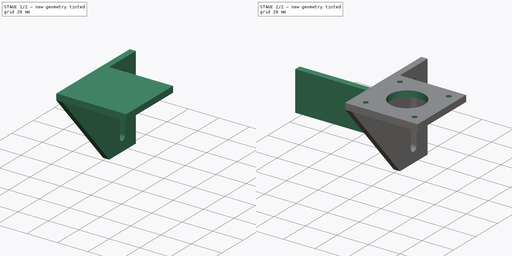
[diagram: build sequence overview — one tinted view per stage of 2, left to right]
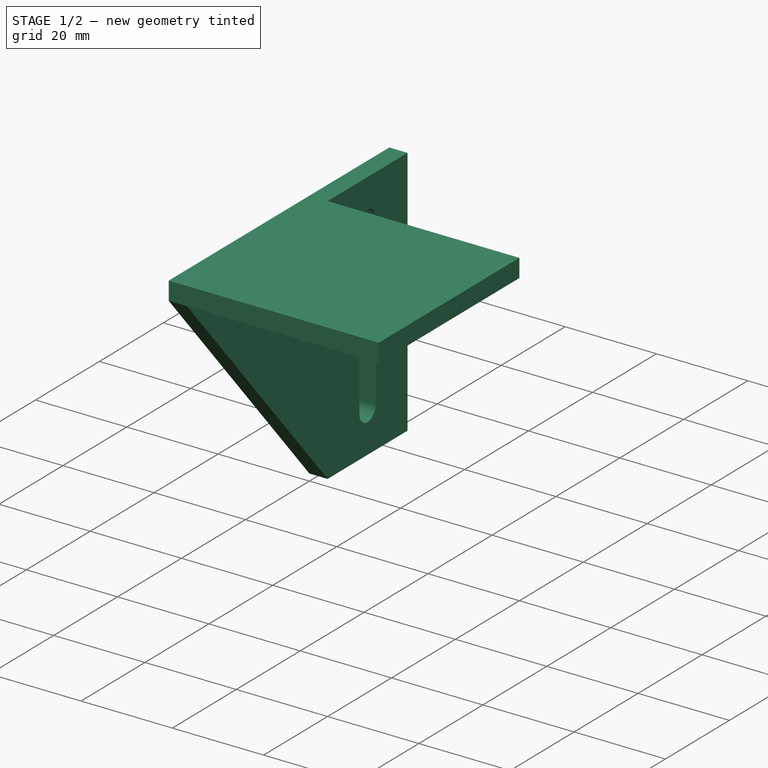
[diagram: stage 1 of 2 — iso view after this stage's code; geometry added in this stage tinted green]
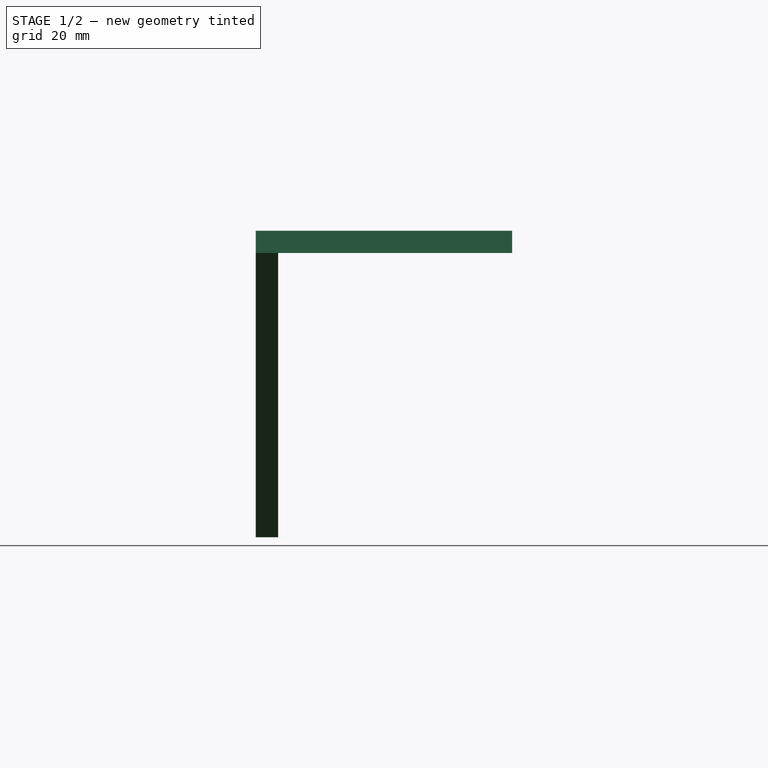
[diagram: stage 1 of 2 — front view after this stage's code; geometry added in this stage tinted green]
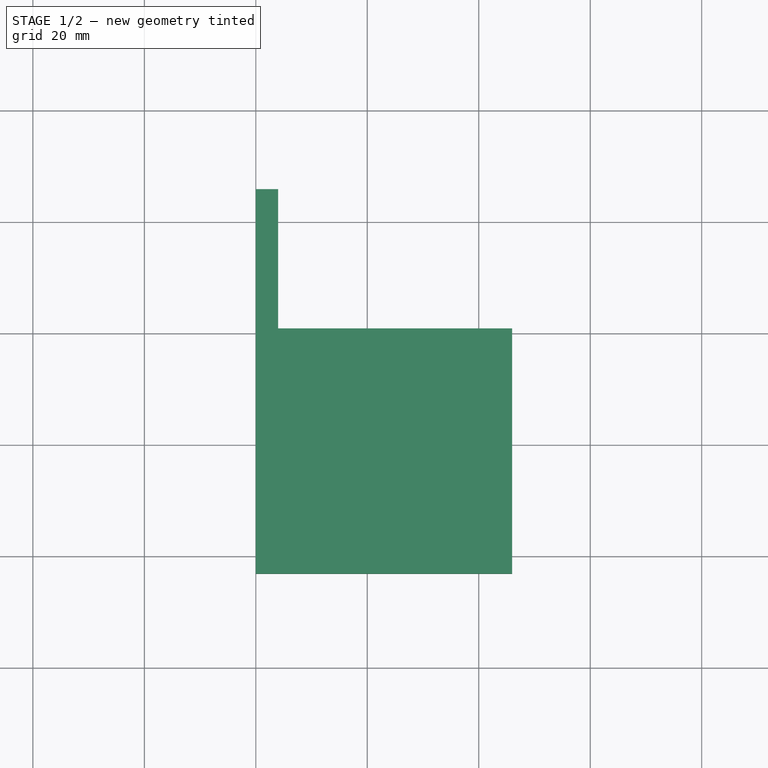
[diagram: stage 1 of 2 — top view after this stage's code; geometry added in this stage tinted green]
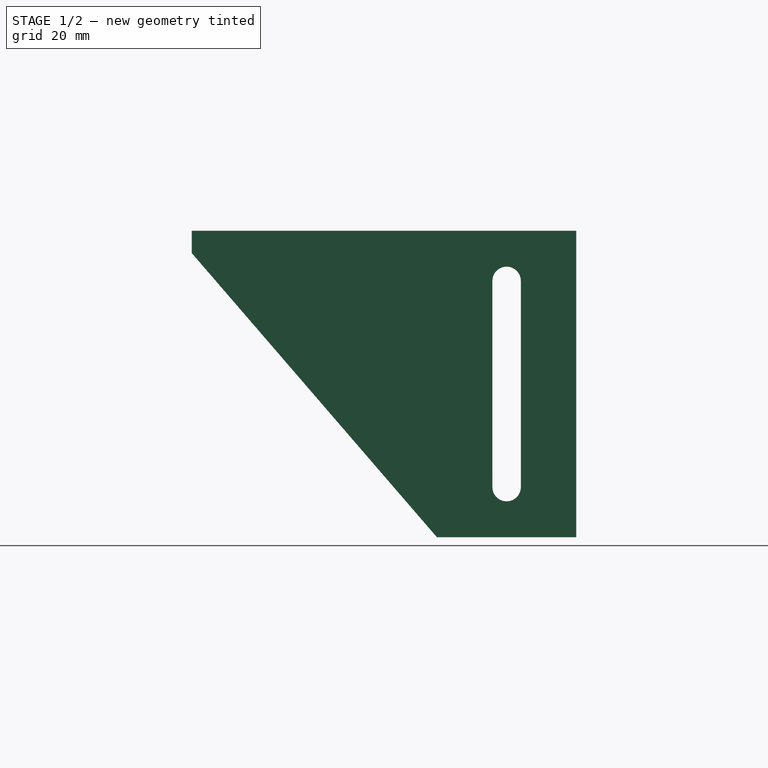
[diagram: stage 1 of 2 — right view after this stage's code; geometry added in this stage tinted green]
FCSTD DOCUMENT  (FreeCAD 0.19R23578 (Git))
Label: y_motor_bracket
License: All rights reserved
LicenseURL: http://en.wikipedia.org/wiki/All_rights_reserved
objects: Sketcher::SketchObject×4, PartDesign::Pad×3, PartDesign::CoordinateSystem×2, PartDesign::Pocket×1, PartDesign::Body×1, App::Part×1
note: 15 computed .brp shape members not serialized (recipe doc carries the construction recipe); baked Part::Feature solids carry a one-line shape summary decoded from their .brp

FEATURE [Sketcher::SketchObject] Sketch029
  MapMode = 5
  Placement = pos=(0,0,0) rot=(0.57735,0.57735,0.57735;2.0944rad)
  Support = -> [YZ_Plane035]
  sketch-geometry (10):
    g0: LineSegment StartX=0 StartY=4 StartZ=0 EndX=25 EndY=4 EndZ=0
    g1: LineSegment StartX=25 StartY=4 StartZ=0 EndX=25 EndY=-51 EndZ=0
    g2: LineSegment StartX=25 StartY=-51 StartZ=0 EndX=0 EndY=-51 EndZ=0
    g3: ArcOfCircle CenterX=12.5 CenterY=-5 CenterZ=0 NormalX=0 NormalY=0 NormalZ=1 AngleXU=0 Radius=2.55 StartAngle=2.224e-13 EndAngle=3.14159
    g4: ArcOfCircle CenterX=12.5 CenterY=-42 CenterZ=0 NormalX=0 NormalY=0 NormalZ=1 AngleXU=0 Radius=2.55 StartAngle=3.14159 EndAngle=6.28319
    g5: LineSegment StartX=9.95 StartY=-5 StartZ=0 EndX=9.95 EndY=-42 EndZ=0
    g6: LineSegment StartX=15.05 StartY=-5 StartZ=0 EndX=15.05 EndY=-42 EndZ=0
    g7: LineSegment StartX=0 StartY=-51 StartZ=0 EndX=-44 EndY=0 EndZ=0
    g8: LineSegment StartX=-44 StartY=0 StartZ=0 EndX=0 EndY=0 EndZ=0
    g9: LineSegment StartX=0 StartY=4 StartZ=0 EndX=0 EndY=0 EndZ=0
  constraints (27):
    c: Horizontal(g0)
    c: Horizontal(g2)
    c: Vertical(g1)
    c: Tangent(g3,g6) = 1.5708
    c: Tangent(g3,g5) = -1.5708
    c: Tangent(g5,g4) = -1.5708
    c: Tangent(g6,g4) = 1.5708
    c: Vertical(g5)
    c: Equal(g3,g4)
    c: DistanceX(g0,g4) = 12.5
    c: Diameter(g3) = 5.1
    c: DistanceY(g4,g0) = 46
    c: Coincident(g0,g1)
    c: DistanceX(g2,g2) = 25
    c: Coincident(g2,g1)
    c: PointOnObject(g0,g-2)
    c: DistanceY(g-1,g0) = 4
    c: DistanceY(g3,g-1) = 5
    c: DistanceY(g2,g-1) = 51
    c: Coincident(g7,g2)
    c: PointOnObject(g7,g-1)
    c: Coincident(g8,g7)
    c: Coincident(g8,g-1)
    c: Coincident(g9,g0)
    c: Coincident(g9,g8)
    c: DistanceX(g7,g8) = 44
    c: PointOnObject(g2,g-2)
FEATURE [PartDesign::Pad] Pad012
  AllowMultiFace = false
  Direction = (1,1,1)
  Length = 4
  Length2 = 100
  Placement = pos=(0,0,0) rot=(0.57735,0.57735,0.57735;2.0944rad)
  Profile = -> Sketch029
  Type = 0
FEATURE [Sketcher::SketchObject] Sketch030
  MapMode = 5
  Placement = pos=(0,0,0) rot=(0.57735,0.57735,0.57735;2.0944rad)
  Support = -> [YZ_Plane035]
  sketch-geometry (4):
    g0: LineSegment StartX=0 StartY=0 StartZ=0 EndX=-44 EndY=0 EndZ=0
    g1: LineSegment StartX=-44 StartY=0 StartZ=0 EndX=-44 EndY=4 EndZ=0
    g2: LineSegment StartX=-44 StartY=4 StartZ=0 EndX=0 EndY=4 EndZ=0
    g3: LineSegment StartX=0 StartY=4 StartZ=0 EndX=0 EndY=0 EndZ=0
  constraints (11):
    c: Coincident(g0,g1)
    c: Coincident(g1,g2)
    c: Coincident(g2,g3)
    c: Coincident(g3,g0)
    c: Horizontal(g0)
    c: Horizontal(g2)
    c: Vertical(g1)
    c: Vertical(g3)
    c: Coincident(g0,g-1)
    c: DistanceY(g1,g1) = 4
    c: DistanceX(g0,g0) = 44
FEATURE [PartDesign::Pad] Pad013
  AllowMultiFace = false
  BaseFeature = -> Pad012
  Direction = (1,1,1)
  Length = 46
  Length2 = 100
  Placement = pos=(0,0,0) rot=(0.57735,0.57735,0.57735;2.0944rad)
  Profile = -> Sketch030
  Type = 0
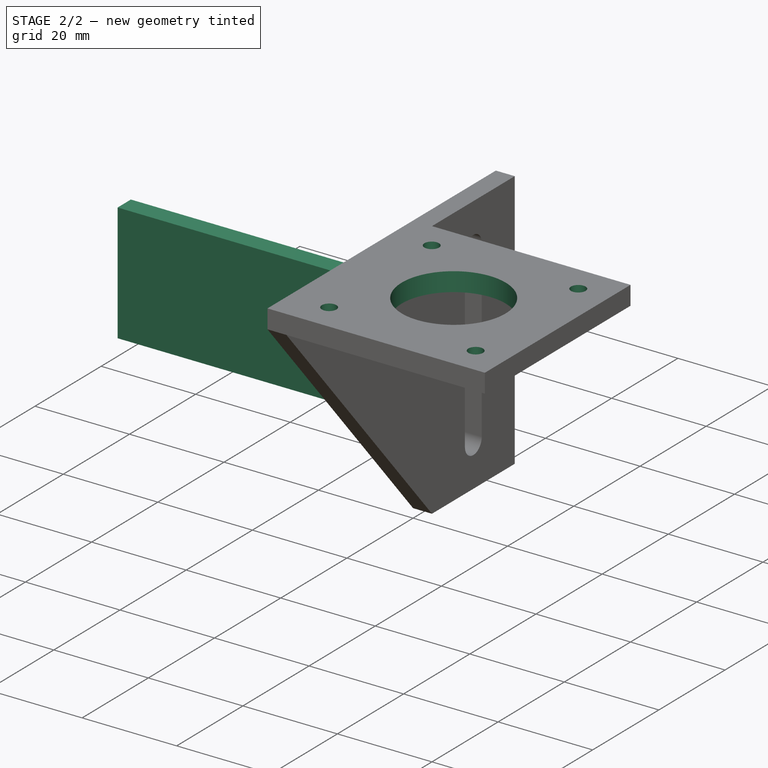
[diagram: stage 2 of 2 — iso view after this stage's code; geometry added in this stage tinted green]
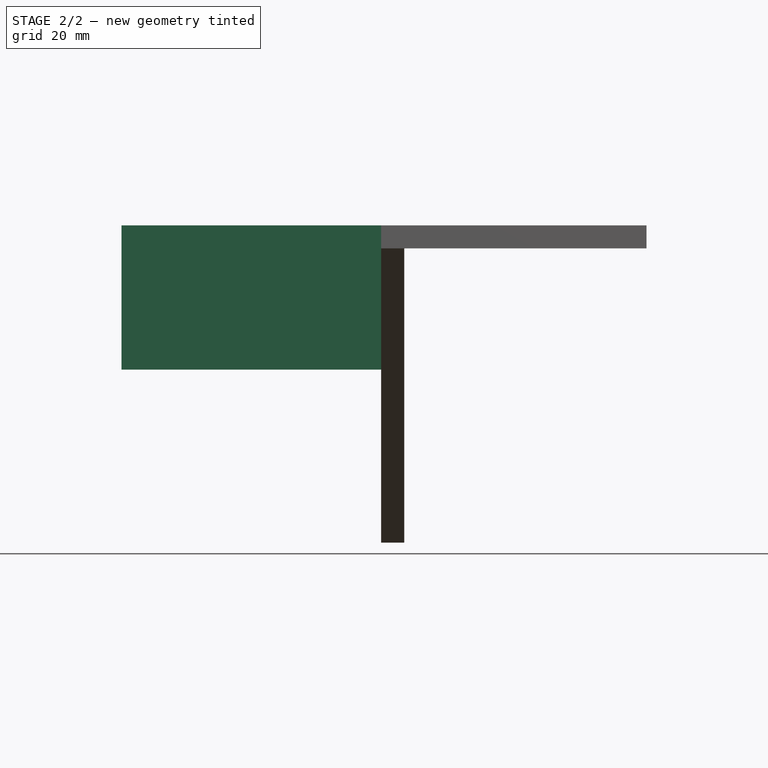
[diagram: stage 2 of 2 — front view after this stage's code; geometry added in this stage tinted green]
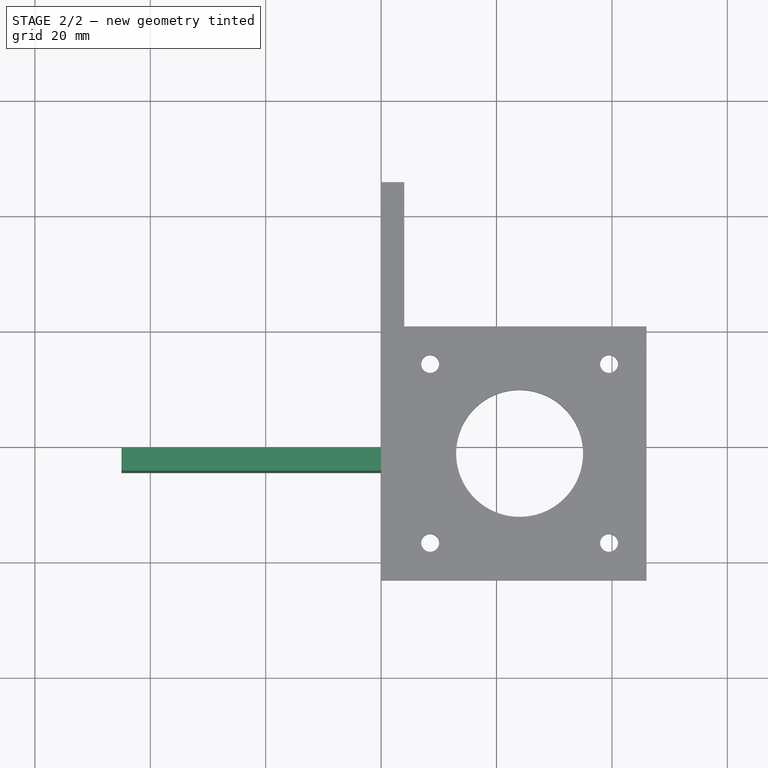
[diagram: stage 2 of 2 — top view after this stage's code; geometry added in this stage tinted green]
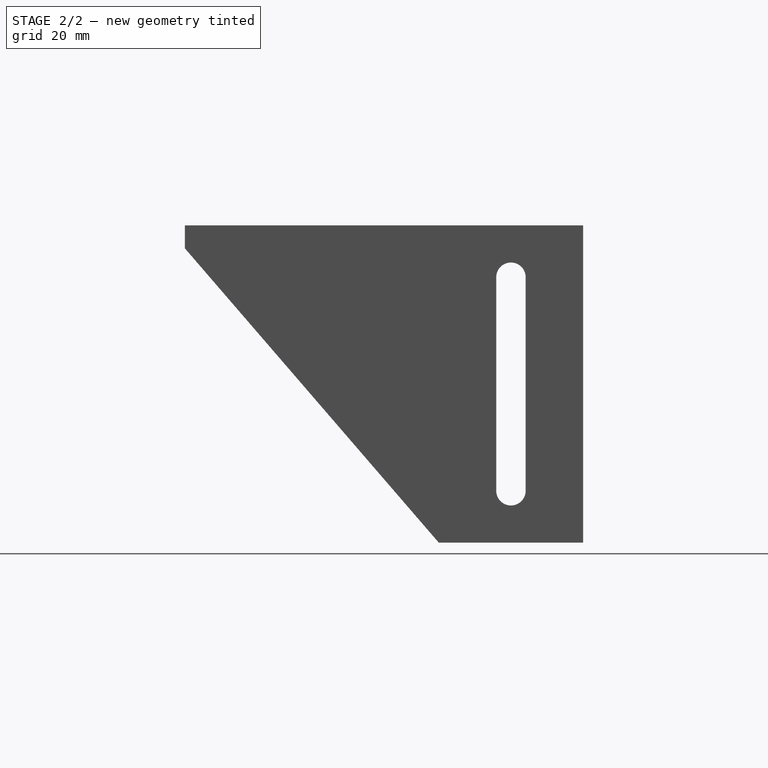
[diagram: stage 2 of 2 — right view after this stage's code; geometry added in this stage tinted green]
FEATURE [Sketcher::SketchObject] Sketch031
  MapMode = 5
  Support = -> [XY_Plane035]
  sketch-geometry (11):
    g0: Circle CenterX=8.5 CenterY=-6.5 CenterZ=0 NormalX=0 NormalY=0 NormalZ=1 AngleXU=0 Radius=1.55
    g1: Circle CenterX=39.5 CenterY=-6.5 CenterZ=0 NormalX=0 NormalY=0 NormalZ=1 AngleXU=0 Radius=1.55
    g2: Circle CenterX=39.5 CenterY=-37.5 CenterZ=0 NormalX=0 NormalY=0 NormalZ=1 AngleXU=0 Radius=1.55
    g3: Circle CenterX=8.5 CenterY=-37.5 CenterZ=0 NormalX=0 NormalY=0 NormalZ=1 AngleXU=0 Radius=1.55
    g4: Circle CenterX=24 CenterY=-22 CenterZ=0 NormalX=0 NormalY=0 NormalZ=1 AngleXU=0 Radius=11
    g5: LineSegment StartX=8.5 StartY=-6.5 StartZ=0 EndX=39.5 EndY=-6.5 EndZ=0
    g6: LineSegment StartX=39.5 StartY=-6.5 StartZ=0 EndX=39.5 EndY=-37.5 EndZ=0
    g7: LineSegment StartX=39.5 StartY=-37.5 StartZ=0 EndX=8.5 EndY=-37.5 EndZ=0
    g8: LineSegment StartX=8.5 StartY=-37.5 StartZ=0 EndX=8.5 EndY=-6.5 EndZ=0
    g9: LineSegment StartX=8.5 StartY=-6.5 StartZ=0 EndX=39.5 EndY=-37.5 EndZ=0
    g10: LineSegment StartX=39.5 StartY=-6.5 StartZ=0 EndX=8.5 EndY=-37.5 EndZ=0
  constraints (27):
    c: Coincident(g5,g6)
    c: Coincident(g6,g7)
    c: Coincident(g7,g8)
    c: Coincident(g8,g5)
    c: Horizontal(g5)
    c: Horizontal(g7)
    c: Vertical(g6)
    c: Vertical(g8)
    c: Coincident(g5,g0)
    c: Coincident(g6,g2)
    c: Coincident(g3,g7)
    c: Coincident(g1,g5)
    c: DistanceY(g6,g6) = 31
    c: DistanceX(g5,g5) = 31
    c: DistanceX(g-1,g0) = 8.5
    c: DistanceY(g0,g-1) = 6.5
    c: Coincident(g9,g0)
    c: Coincident(g9,g2)
    c: Coincident(g10,g1)
    c: Coincident(g10,g3)
    c: PointOnObject(g4,g10)
    c: PointOnObject(g4,g9)
    c: Equal(g0,g1)
    c: Equal(g1,g2)
    c: Equal(g2,g3)
    c: Diameter(g1) = 3.1
    c: Diameter(g4) = 22
FEATURE [PartDesign::Pocket] Pocket012
  AllowMultiFace = false
  BaseFeature = -> Pad013
  Length = 5
  Length2 = 100
  Placement = pos=(0,0,0) rot=(0.57735,0.57735,0.57735;2.0944rad)
  Profile = -> Sketch031
  Reversed = true
  Type = 1
FEATURE [Sketcher::SketchObject] Sketch032
  MapMode = 5
  Placement = pos=(0,0,0) rot=(-0.57735,0.57735,0.57735;4.18879rad)
  Support = -> [YZ_Plane035]
  sketch-geometry (4):
    g0: LineSegment StartX=21 StartY=4 StartZ=0 EndX=25 EndY=4 EndZ=0
    g1: LineSegment StartX=25 StartY=4 StartZ=0 EndX=25 EndY=-21 EndZ=0
    g2: LineSegment StartX=25 StartY=-21 StartZ=0 EndX=21 EndY=-21 EndZ=0
    g3: LineSegment StartX=21 StartY=-21 StartZ=0 EndX=21 EndY=4 EndZ=0
  constraints (12):
    c: Coincident(g0,g1)
    c: Coincident(g1,g2)
    c: Coincident(g2,g3)
    c: Coincident(g3,g0)
    c: Horizontal(g0)
    c: Horizontal(g2)
    c: Vertical(g1)
    c: Vertical(g3)
    c: DistanceY(g1,g1) = 25
    c: DistanceX(g0,g0) = 4
    c: DistanceY(g-1,g0) = 4
    c: DistanceX(g-1,g0) = 21
FEATURE [PartDesign::Pad] Pad003
  AllowMultiFace = false
  BaseFeature = -> Pocket012
  Direction = (1,1,1)
  Length = 45
  Length2 = 100
  Placement = pos=(0,0,0) rot=(0.57735,0.57735,0.57735;2.0944rad)
  Profile = -> Sketch032
  Type = 0
FEATURE [PartDesign::Body] Body012
  Group = -> [Sketch029,Pad012,Sketch030,Pad013,Sketch031,Pocket012,Sketch032,Pad003]
  Origin = -> Origin035
  Tip = -> Pad003
FEATURE [PartDesign::CoordinateSystem] LCS_1
  AttacherType = Attacher::AttachEngine3D
  MapMode = 11
  Placement = pos=(24,-22,4) rot=(-0.707107,0.707107,0;3.14159rad)
  Support = -> [Pad003]
FEATURE [PartDesign::CoordinateSystem] LCS_2
  AttacherType = Attacher::AttachEngine3D
  MapMode = 45
  Placement = pos=(4,12.5,-23.5) rot=(0.57735,0.57735,0.57735;2.0944rad)
  Support = -> [Pad003]
FEATURE [App::Part] Part022  label="y_motor_bracket"
  Group = -> [Body012,LCS_1,LCS_2]
  Origin = -> Origin032
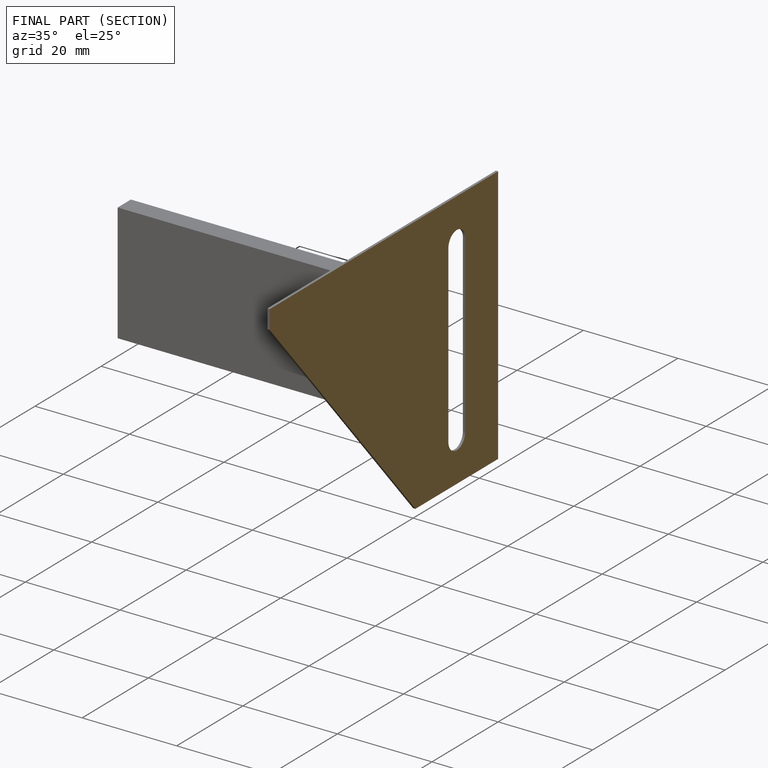
[diagram: finished part — half-section view (interior)]
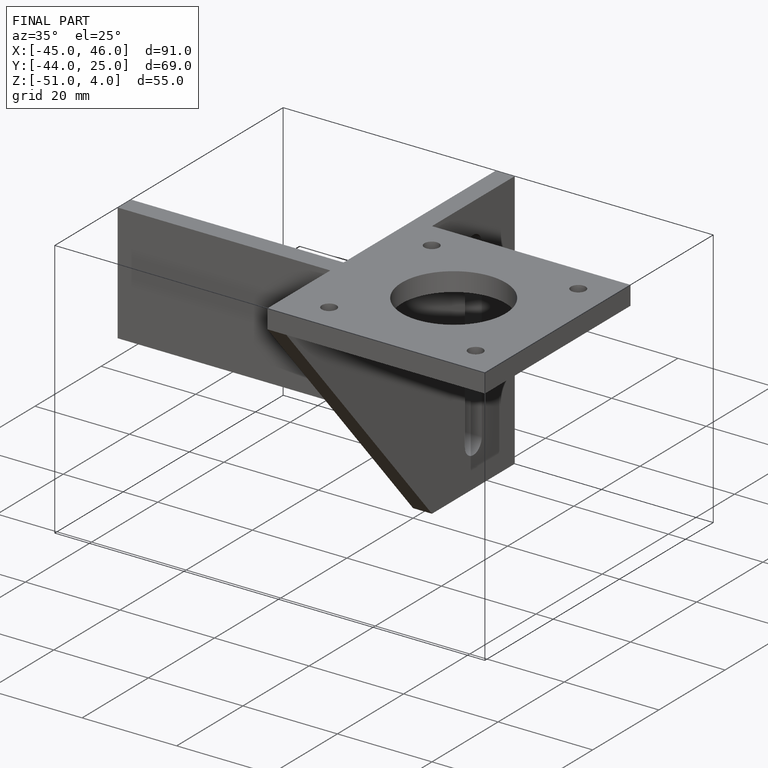
[diagram: finished part — iso view with bounding-box wireframe]
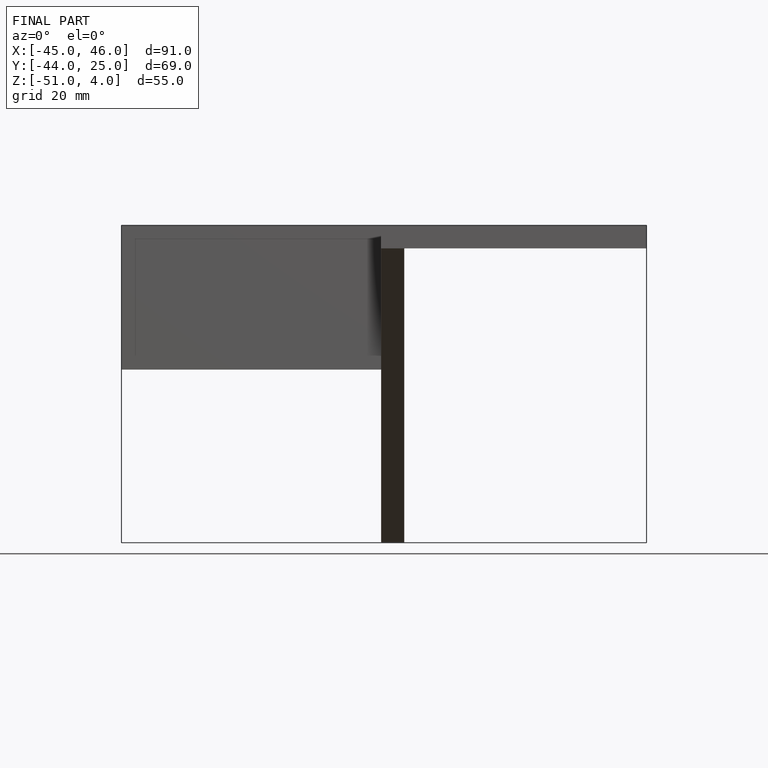
[diagram: finished part — front view with bounding-box wireframe]
